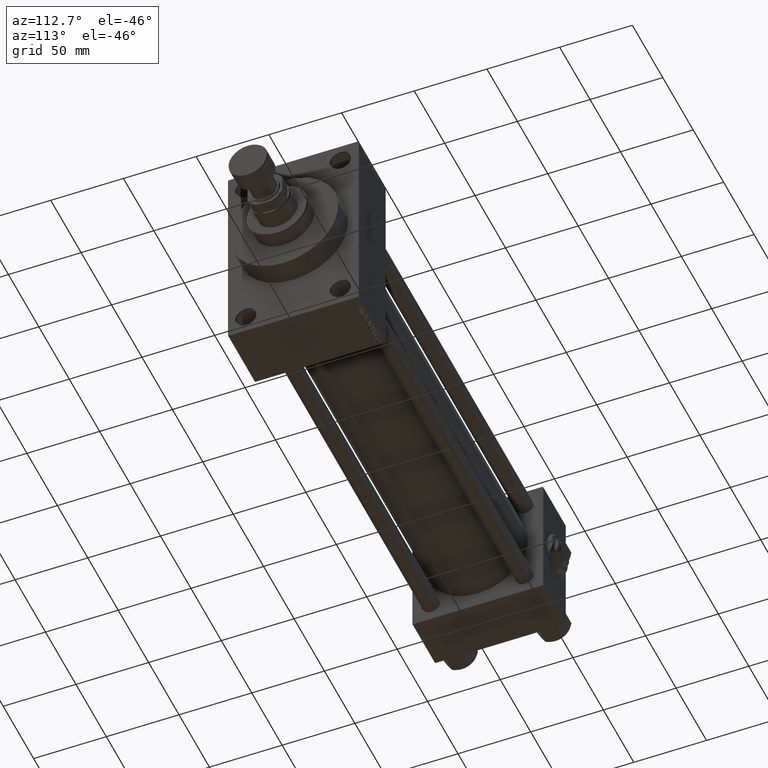
[diagram: clean part render]
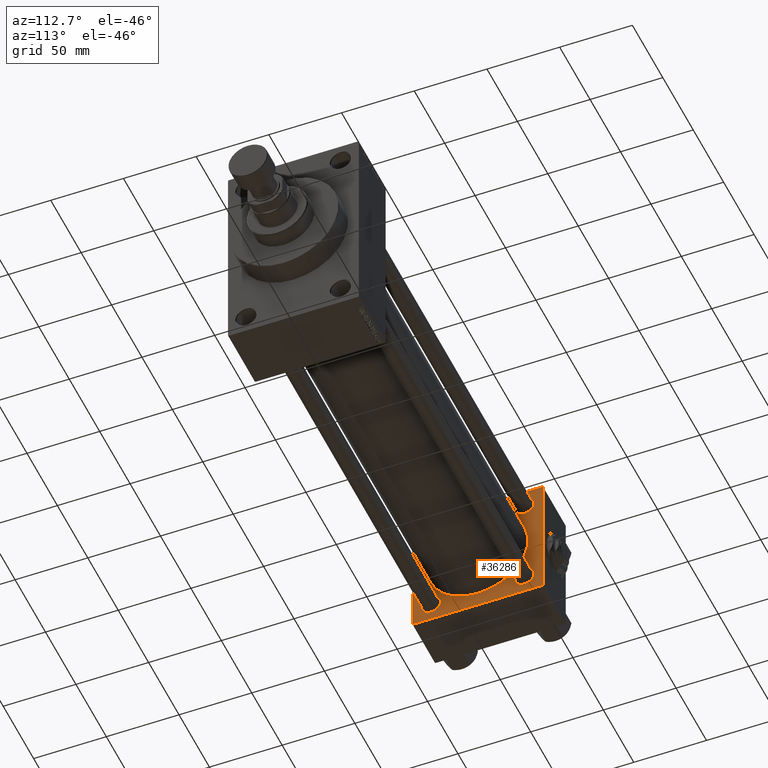
[diagram: same view with one face highlighted and labeled with its STEP entity id]
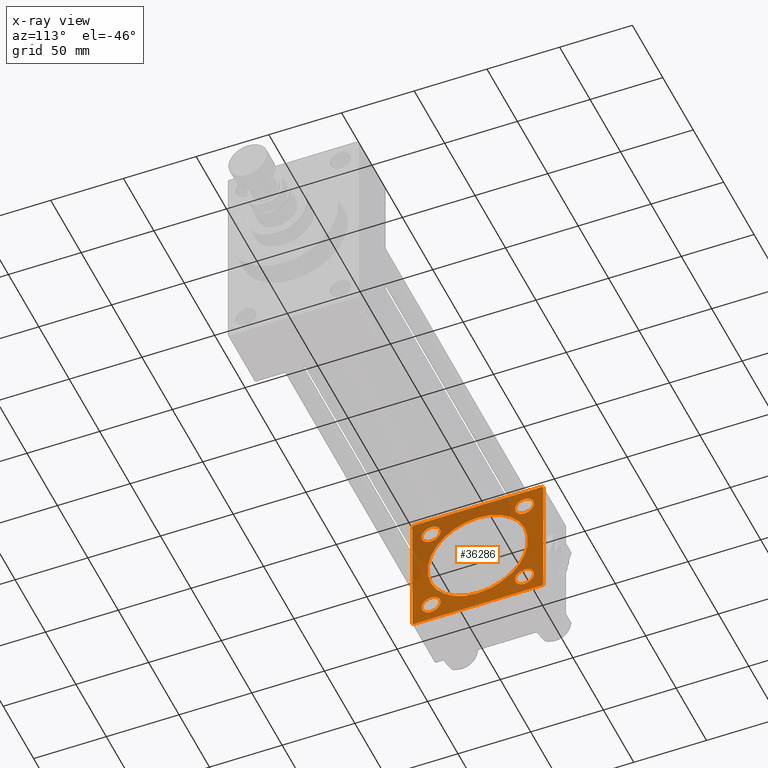
[diagram: x-ray of the same camera — body ghosted, the highlighted face saturated]
A machine part, auxiliary view. The second image highlights one B-rep face of the part: STEP entity #36286.
The next image is the same camera in x-ray: the body ghosted, the highlighted face saturated — about 31% of this face is hidden behind the body in this view.
In plain terms, the highlighted planar face has unit normal (-1, 0, 0).
Its self-contained STEP definition (entity closure, byte-faithful):
#286 = VECTOR ( 'NONE', #48679, 1000.000000000000000 ) ;
#797 = VERTEX_POINT ( 'NONE', #34910 ) ;
#896 = DIRECTION ( 'NONE',  ( -0.000000000000000000, 0.7071067811865474617, 0.7071067811865474617 ) ) ;
#1160 = DIRECTION ( 'NONE',  ( -1.000000000000000000, 0.000000000000000000, -0.000000000000000000 ) ) ;
#1462 = VECTOR ( 'NONE', #26549, 1000.000000000000114 ) ;
#1513 = EDGE_CURVE ( 'NONE', #25442, #46427, #18189, .T. ) ;
#2753 = VECTOR ( 'NONE', #896, 1000.000000000000114 ) ;
#3610 = DIRECTION ( 'NONE',  ( 1.000000000000000000, -0.000000000000000000, 0.000000000000000000 ) ) ;
#3713 = CIRCLE ( 'NONE', #15701, 34.50000000000000000 ) ;
#3900 = VERTEX_POINT ( 'NONE', #21566 ) ;
#4226 = EDGE_CURVE ( 'NONE', #10990, #38193, #29255, .T. ) ;
#4378 = DIRECTION ( 'NONE',  ( 0.000000000000000000, 0.000000000000000000, 1.000000000000000000 ) ) ;
#4662 = CIRCLE ( 'NONE', #46934, 6.500000000000061284 ) ;
#5630 = CARTESIAN_POINT ( 'NONE',  ( 37.00000000000000000, 32.14999999999999147, 32.15000000000000568 ) ) ;
#5790 = VERTEX_POINT ( 'NONE', #34759 ) ;
#6118 = AXIS2_PLACEMENT_3D ( 'NONE', #10717, #9984, #10234 ) ;
#6260 = CIRCLE ( 'NONE', #35756, 6.500000000000061284 ) ;
#7336 = EDGE_LOOP ( 'NONE', ( #44086, #48692 ) ) ;
#7370 = CARTESIAN_POINT ( 'NONE',  ( 36.99999999999997868, -2.602085213965210642E-15, 0.000000000000000000 ) ) ;
#7526 = LINE ( 'NONE', #42238, #11538 ) ;
#7707 = ORIENTED_EDGE ( 'NONE', *, *, #17533, .T. ) ;
#7983 = CARTESIAN_POINT ( 'NONE',  ( 36.99999999999997868, 1.622946243093158675E-15, -34.50000000000000000 ) ) ;
#7986 = EDGE_CURVE ( 'NONE', #15122, #48453, #4662, .T. ) ;
#8333 = EDGE_CURVE ( 'NONE', #38193, #10990, #6260, .T. ) ;
#8387 = ORIENTED_EDGE ( 'NONE', *, *, #20626, .T. ) ;
#8507 = DIRECTION ( 'NONE',  ( -1.000000000000000000, 0.000000000000000000, -0.000000000000000000 ) ) ;
#8691 = CARTESIAN_POINT ( 'NONE',  ( 37.00000000000000000, 44.99999999999998579, 44.50000000000001421 ) ) ;
#8912 = AXIS2_PLACEMENT_3D ( 'NONE', #19877, #31120, #12886 ) ;
#9064 = ORIENTED_EDGE ( 'NONE', *, *, #44887, .F. ) ;
#9984 = DIRECTION ( 'NONE',  ( -1.000000000000000000, 0.000000000000000000, -0.000000000000000000 ) ) ;
#10234 = DIRECTION ( 'NONE',  ( 0.000000000000000000, 0.000000000000000000, 1.000000000000000000 ) ) ;
#10566 = CIRCLE ( 'NONE', #13680, 6.500000000000061284 ) ;
#10594 = ORIENTED_EDGE ( 'NONE', *, *, #12833, .F. ) ;
#10717 = CARTESIAN_POINT ( 'NONE',  ( 37.00000000000000000, -32.14999999999997726, 32.15000000000001279 ) ) ;
#10990 = VERTEX_POINT ( 'NONE', #44997 ) ;
#11380 = DIRECTION ( 'NONE',  ( 1.000000000000000000, -0.000000000000000000, 0.000000000000000000 ) ) ;
#11538 = VECTOR ( 'NONE', #37749, 1000.000000000000114 ) ;
#12231 = PLANE ( 'NONE',  #46730 ) ;
#12833 = EDGE_CURVE ( 'NONE', #3900, #49285, #49396, .T. ) ;
#12886 = DIRECTION ( 'NONE',  ( 0.000000000000000000, 0.000000000000000000, 1.000000000000000000 ) ) ;
#13644 = AXIS2_PLACEMENT_3D ( 'NONE', #21711, #13744, #28718 ) ;
#13680 = AXIS2_PLACEMENT_3D ( 'NONE', #13973, #36698, #25443 ) ;
#13744 = DIRECTION ( 'NONE',  ( -1.000000000000000000, 0.000000000000000000, -0.000000000000000000 ) ) ;
#13773 = DIRECTION ( 'NONE',  ( 0.000000000000000000, 0.000000000000000000, -1.000000000000000000 ) ) ;
#13973 = CARTESIAN_POINT ( 'NONE',  ( 37.00000000000000000, -32.14999999999997726, -32.15000000000001279 ) ) ;
#15122 = VERTEX_POINT ( 'NONE', #31222 ) ;
#15223 = CARTESIAN_POINT ( 'NONE',  ( 37.00000000000000000, 44.49999999999998579, 45.00000000000001421 ) ) ;
#15701 = AXIS2_PLACEMENT_3D ( 'NONE', #7370, #11380, #48845 ) ;
#15990 = LINE ( 'NONE', #27467, #46073 ) ;
#16662 = EDGE_CURVE ( 'NONE', #797, #5790, #30854, .T. ) ;
#17061 = EDGE_CURVE ( 'NONE', #34829, #48046, #28781, .T. ) ;
#17233 = ORIENTED_EDGE ( 'NONE', *, *, #16662, .T. ) ;
#17235 = VERTEX_POINT ( 'NONE', #15223 ) ;
#17470 = ORIENTED_EDGE ( 'NONE', *, *, #33590, .T. ) ;
#17520 = LINE ( 'NONE', #21502, #38116 ) ;
#17533 = EDGE_CURVE ( 'NONE', #41294, #44300, #26439, .T. ) ;
#17639 = VECTOR ( 'NONE', #46850, 1000.000000000000000 ) ;
#18183 = CARTESIAN_POINT ( 'NONE',  ( 37.00000000000000000, 44.99999999999998579, 45.00000000000001421 ) ) ;
#18189 = LINE ( 'NONE', #32947, #286 ) ;
#18335 = ORIENTED_EDGE ( 'NONE', *, *, #41041, .T. ) ;
#18846 = DIRECTION ( 'NONE',  ( 0.000000000000000000, 0.000000000000000000, 1.000000000000000000 ) ) ;
#19064 = LINE ( 'NONE', #41285, #1462 ) ;
#19454 = VERTEX_POINT ( 'NONE', #22896 ) ;
#19707 = FACE_BOUND ( 'NONE', #45422, .T. ) ;
#19732 = CARTESIAN_POINT ( 'NONE',  ( 37.00000000000000000, 32.14999999999999147, -32.15000000000000568 ) ) ;
#19877 = CARTESIAN_POINT ( 'NONE',  ( 37.00000000000000000, -32.14999999999997726, -32.15000000000001279 ) ) ;
#20163 = AXIS2_PLACEMENT_3D ( 'NONE', #19732, #8507, #23232 ) ;
#20626 = EDGE_CURVE ( 'NONE', #48046, #34829, #42485, .T. ) ;
#20710 = EDGE_CURVE ( 'NONE', #44300, #41294, #10566, .T. ) ;
#21221 = CARTESIAN_POINT ( 'NONE',  ( 37.00000000000000000, -32.14999999999997726, 32.15000000000001279 ) ) ;
#21502 = CARTESIAN_POINT ( 'NONE',  ( 37.00000000000000000, 44.99999999999998579, 45.00000000000001421 ) ) ;
#21566 = CARTESIAN_POINT ( 'NONE',  ( 36.99999999999997868, -2.602085213965210642E-15, 34.50000000000000000 ) ) ;
#21711 = CARTESIAN_POINT ( 'NONE',  ( 37.00000000000000000, 32.14999999999999147, -32.15000000000000568 ) ) ;
#22073 = CARTESIAN_POINT ( 'NONE',  ( 37.00000000000000000, 32.14999999999999147, -25.64999999999994529 ) ) ;
#22209 = EDGE_LOOP ( 'NONE', ( #33914, #7707 ) ) ;
#22592 = CARTESIAN_POINT ( 'NONE',  ( 36.99999999999997868, -2.602085213965210642E-15, 0.000000000000000000 ) ) ;
#22896 = CARTESIAN_POINT ( 'NONE',  ( 37.00000000000000000, 44.99999999999998579, -44.49999999999995737 ) ) ;
#23232 = DIRECTION ( 'NONE',  ( 0.000000000000000000, 0.000000000000000000, 1.000000000000000000 ) ) ;
#23365 = LINE ( 'NONE', #46853, #2753 ) ;
#23838 = CARTESIAN_POINT ( 'NONE',  ( 37.00000000000000000, -32.14999999999997726, -38.65000000000007674 ) ) ;
#23855 = CARTESIAN_POINT ( 'NONE',  ( 37.00000000000000000, 32.14999999999999147, 32.15000000000000568 ) ) ;
#23948 = DIRECTION ( 'NONE',  ( -1.000000000000000000, 0.000000000000000000, -0.000000000000000000 ) ) ;
#24145 = EDGE_LOOP ( 'NONE', ( #39891, #17470, #9064, #18335, #32280, #40155, #17233, #28960 ) ) ;
#25442 = VERTEX_POINT ( 'NONE', #29044 ) ;
#25443 = DIRECTION ( 'NONE',  ( 0.000000000000000000, 0.000000000000000000, 1.000000000000000000 ) ) ;
#25813 = EDGE_LOOP ( 'NONE', ( #29831, #26638 ) ) ;
#26439 = CIRCLE ( 'NONE', #8912, 6.500000000000061284 ) ;
#26549 = DIRECTION ( 'NONE',  ( -0.000000000000000000, -0.7071067811865425767, -0.7071067811865524577 ) ) ;
#26638 = ORIENTED_EDGE ( 'NONE', *, *, #8333, .T. ) ;
#27202 = FACE_BOUND ( 'NONE', #25813, .T. ) ;
#27467 = CARTESIAN_POINT ( 'NONE',  ( 37.00000000000000000, 44.49999999999998579, 45.00000000000001421 ) ) ;
#27696 = DIRECTION ( 'NONE',  ( -0.000000000000000000, 0.000000000000000000, 1.000000000000000000 ) ) ;
#27749 = VERTEX_POINT ( 'NONE', #8691 ) ;
#27783 = EDGE_LOOP ( 'NONE', ( #10594, #42466 ) ) ;
#28303 = CARTESIAN_POINT ( 'NONE',  ( 37.00000000000000000, 32.14999999999999147, 38.65000000000006963 ) ) ;
#28718 = DIRECTION ( 'NONE',  ( 0.000000000000000000, 0.000000000000000000, 1.000000000000000000 ) ) ;
#28781 = CIRCLE ( 'NONE', #13644, 6.500000000000061284 ) ;
#28960 = ORIENTED_EDGE ( 'NONE', *, *, #33028, .T. ) ;
#29044 = CARTESIAN_POINT ( 'NONE',  ( 37.00000000000000000, 44.49999999999998579, -44.99999999999998579 ) ) ;
#29255 = CIRCLE ( 'NONE', #6118, 6.500000000000061284 ) ;
#29460 = DIRECTION ( 'NONE',  ( -1.000000000000000000, 0.000000000000000000, -0.000000000000000000 ) ) ;
#29831 = ORIENTED_EDGE ( 'NONE', *, *, #4226, .T. ) ;
#30854 = LINE ( 'NONE', #43103, #17639 ) ;
#30903 = CARTESIAN_POINT ( 'NONE',  ( 37.00000000000000000, -32.14999999999997726, -25.64999999999994884 ) ) ;
#31120 = DIRECTION ( 'NONE',  ( -1.000000000000000000, 0.000000000000000000, -0.000000000000000000 ) ) ;
#31222 = CARTESIAN_POINT ( 'NONE',  ( 37.00000000000000000, 32.14999999999999147, 25.64999999999994529 ) ) ;
#31608 = DIRECTION ( 'NONE',  ( -1.000000000000000000, 0.000000000000000000, -0.000000000000000000 ) ) ;
#31702 = CARTESIAN_POINT ( 'NONE',  ( 37.00000000000000000, 0.000000000000000000, 0.000000000000000000 ) ) ;
#31714 = DIRECTION ( 'NONE',  ( 0.000000000000000000, -0.7071067811865474617, 0.7071067811865474617 ) ) ;
#32280 = ORIENTED_EDGE ( 'NONE', *, *, #39819, .T. ) ;
#32722 = DIRECTION ( 'NONE',  ( 0.000000000000000000, 0.000000000000000000, 1.000000000000000000 ) ) ;
#32947 = CARTESIAN_POINT ( 'NONE',  ( 37.00000000000000000, 44.99999999999998579, -44.99999999999998579 ) ) ;
#33028 = EDGE_CURVE ( 'NONE', #5790, #46427, #7526, .T. ) ;
#33432 = AXIS2_PLACEMENT_3D ( 'NONE', #22592, #3610, #18846 ) ;
#33590 = EDGE_CURVE ( 'NONE', #25442, #19454, #23365, .T. ) ;
#33676 = DIRECTION ( 'NONE',  ( 0.000000000000000000, -1.000000000000000000, -1.541976423090495387E-16 ) ) ;
#33708 = VERTEX_POINT ( 'NONE', #40079 ) ;
#33914 = ORIENTED_EDGE ( 'NONE', *, *, #20710, .T. ) ;
#34759 = CARTESIAN_POINT ( 'NONE',  ( 37.00000000000000000, -45.00000000000000000, -44.49999999999995737 ) ) ;
#34829 = VERTEX_POINT ( 'NONE', #22073 ) ;
#34910 = CARTESIAN_POINT ( 'NONE',  ( 37.00000000000000000, -45.00000000000000711, 44.49999999999997158 ) ) ;
#35756 = AXIS2_PLACEMENT_3D ( 'NONE', #21221, #29460, #32722 ) ;
#36286 = ADVANCED_FACE ( 'NONE', ( #39440, #19707, #27202, #42442, #47187, #38706 ), #12231, .F. ) ;
#36698 = DIRECTION ( 'NONE',  ( -1.000000000000000000, 0.000000000000000000, -0.000000000000000000 ) ) ;
#37164 = LINE ( 'NONE', #18183, #46041 ) ;
#37749 = DIRECTION ( 'NONE',  ( 0.000000000000000000, 0.7071067811865474617, -0.7071067811865474617 ) ) ;
#38116 = VECTOR ( 'NONE', #13773, 1000.000000000000000 ) ;
#38193 = VERTEX_POINT ( 'NONE', #48037 ) ;
#38706 = FACE_OUTER_BOUND ( 'NONE', #24145, .T. ) ;
#38873 = EDGE_CURVE ( 'NONE', #49285, #3900, #3713, .T. ) ;
#39440 = FACE_BOUND ( 'NONE', #22209, .T. ) ;
#39819 = EDGE_CURVE ( 'NONE', #17235, #33708, #37164, .T. ) ;
#39891 = ORIENTED_EDGE ( 'NONE', *, *, #1513, .F. ) ;
#40079 = CARTESIAN_POINT ( 'NONE',  ( 37.00000000000000000, -44.49999999999995737, 45.00000000000000000 ) ) ;
#40155 = ORIENTED_EDGE ( 'NONE', *, *, #45332, .T. ) ;
#41041 = EDGE_CURVE ( 'NONE', #27749, #17235, #15990, .T. ) ;
#41285 = CARTESIAN_POINT ( 'NONE',  ( 37.00000000000000000, -45.00000000000000711, 44.49999999999997158 ) ) ;
#41294 = VERTEX_POINT ( 'NONE', #30903 ) ;
#41461 = AXIS2_PLACEMENT_3D ( 'NONE', #5630, #1160, #47593 ) ;
#42238 = CARTESIAN_POINT ( 'NONE',  ( 37.00000000000000000, -44.49999999999998579, -45.00000000000000000 ) ) ;
#42442 = FACE_BOUND ( 'NONE', #7336, .T. ) ;
#42466 = ORIENTED_EDGE ( 'NONE', *, *, #38873, .F. ) ;
#42485 = CIRCLE ( 'NONE', #20163, 6.500000000000061284 ) ;
#42893 = CARTESIAN_POINT ( 'NONE',  ( 37.00000000000000000, 32.14999999999999147, -38.65000000000006963 ) ) ;
#43103 = CARTESIAN_POINT ( 'NONE',  ( 37.00000000000000000, -45.00000000000000711, 45.00000000000000000 ) ) ;
#44086 = ORIENTED_EDGE ( 'NONE', *, *, #7986, .T. ) ;
#44300 = VERTEX_POINT ( 'NONE', #23838 ) ;
#44887 = EDGE_CURVE ( 'NONE', #27749, #19454, #17520, .T. ) ;
#44997 = CARTESIAN_POINT ( 'NONE',  ( 37.00000000000000000, -32.14999999999997726, 25.64999999999994884 ) ) ;
#45332 = EDGE_CURVE ( 'NONE', #33708, #797, #19064, .T. ) ;
#45422 = EDGE_LOOP ( 'NONE', ( #8387, #48107 ) ) ;
#46041 = VECTOR ( 'NONE', #33676, 1000.000000000000000 ) ;
#46073 = VECTOR ( 'NONE', #31714, 1000.000000000000114 ) ;
#46378 = CARTESIAN_POINT ( 'NONE',  ( 37.00000000000000000, -44.49999999999995737, -45.00000000000000000 ) ) ;
#46427 = VERTEX_POINT ( 'NONE', #46378 ) ;
#46730 = AXIS2_PLACEMENT_3D ( 'NONE', #31702, #23948, #27696 ) ;
#46850 = DIRECTION ( 'NONE',  ( 0.000000000000000000, 7.709882115452476934E-17, -1.000000000000000000 ) ) ;
#46853 = CARTESIAN_POINT ( 'NONE',  ( 37.00000000000000000, 44.99999999999998579, -44.49999999999998579 ) ) ;
#46934 = AXIS2_PLACEMENT_3D ( 'NONE', #23855, #31608, #4378 ) ;
#47187 = FACE_BOUND ( 'NONE', #27783, .T. ) ;
#47593 = DIRECTION ( 'NONE',  ( 0.000000000000000000, 0.000000000000000000, 1.000000000000000000 ) ) ;
#47855 = CIRCLE ( 'NONE', #41461, 6.500000000000061284 ) ;
#48037 = CARTESIAN_POINT ( 'NONE',  ( 37.00000000000000000, -32.14999999999997726, 38.65000000000007674 ) ) ;
#48046 = VERTEX_POINT ( 'NONE', #42893 ) ;
#48107 = ORIENTED_EDGE ( 'NONE', *, *, #17061, .T. ) ;
#48453 = VERTEX_POINT ( 'NONE', #28303 ) ;
#48679 = DIRECTION ( 'NONE',  ( 0.000000000000000000, -1.000000000000000000, -1.541976423090495633E-16 ) ) ;
#48692 = ORIENTED_EDGE ( 'NONE', *, *, #48866, .T. ) ;
#48845 = DIRECTION ( 'NONE',  ( 0.000000000000000000, 0.000000000000000000, 1.000000000000000000 ) ) ;
#48866 = EDGE_CURVE ( 'NONE', #48453, #15122, #47855, .T. ) ;
#49285 = VERTEX_POINT ( 'NONE', #7983 ) ;
#49396 = CIRCLE ( 'NONE', #33432, 34.50000000000000000 ) ;